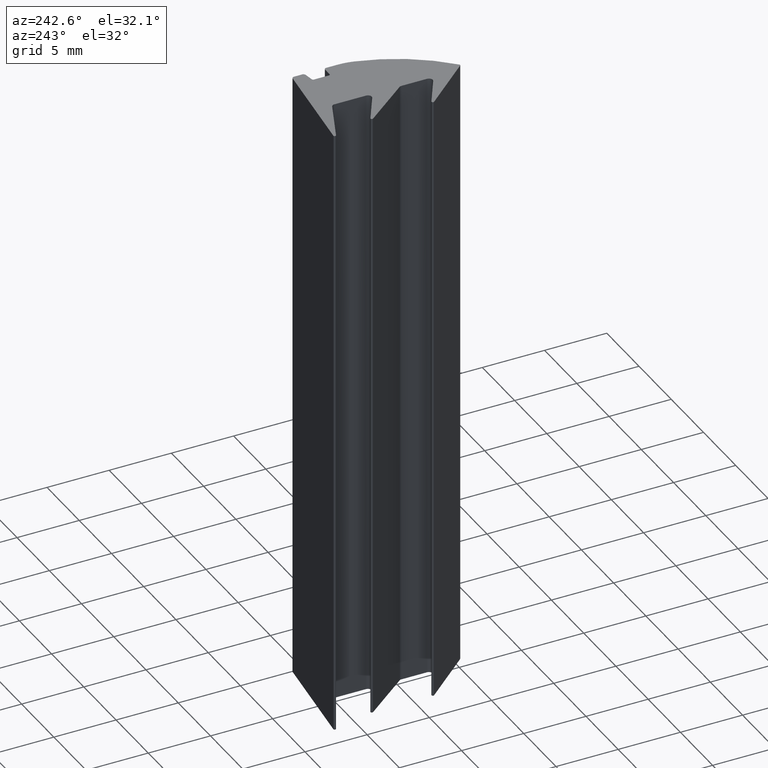
[diagram: clean part render]
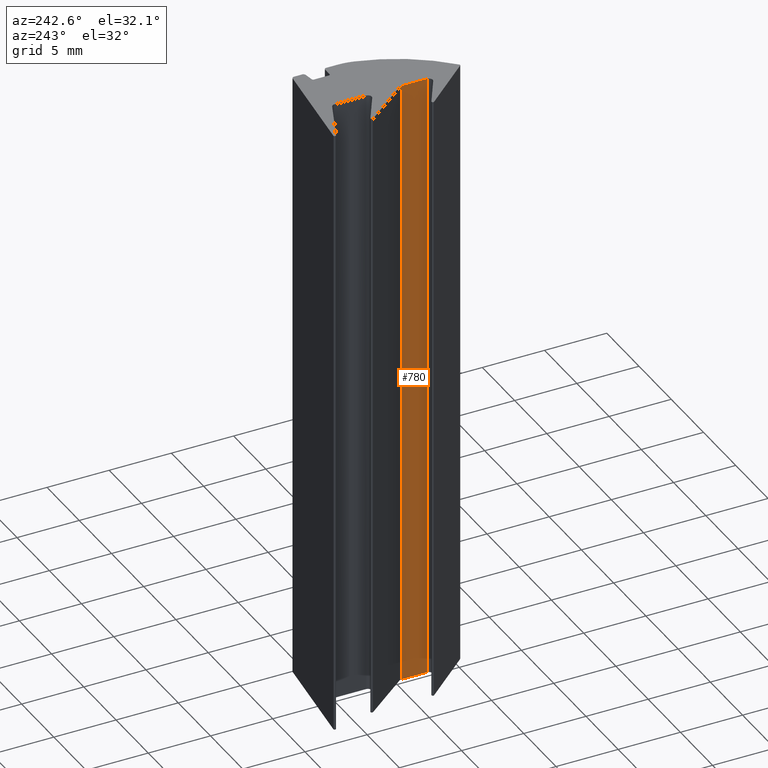
[diagram: same view with one face highlighted and labeled with its STEP entity id]
A machine part, auxiliary view. The second image highlights one B-rep face of the part: STEP entity #780.
In plain terms, the highlighted planar face has unit normal (-1, 0, 0).
Its self-contained STEP definition (entity closure, byte-faithful):
#722=CARTESIAN_POINT('',(-0.640388909993418,4.981490712340172,0.0));
#723=VERTEX_POINT('',#722);
#731=CARTESIAN_POINT('',(-0.640388909993418,4.981490712340172,50.0));
#732=VERTEX_POINT('',#731);
#733=CARTESIAN_POINT('',(-0.640388909993418,4.981490712340172,0.0));
#734=DIRECTION('',(0.0,0.0,1.0));
#735=VECTOR('',#734,50.0);
#736=LINE('',#733,#735);
#737=EDGE_CURVE('',#723,#732,#736,.T.);
#750=CARTESIAN_POINT('',(-0.640388909993418,4.981490712340172,0.0));
#751=DIRECTION('',(-1.0,0.0,0.0));
#752=DIRECTION('',(0.0,-1.0,0.0));
#753=AXIS2_PLACEMENT_3D('',#750,#751,#752);
#754=PLANE('',#753);
#755=CARTESIAN_POINT('',(-0.640388909993418,2.927990804118320,0.0));
#756=VERTEX_POINT('',#755);
#757=CARTESIAN_POINT('',(-0.640388909993418,4.981490712340172,0.0));
#758=DIRECTION('',(0.0,-1.0,0.0));
#759=VECTOR('',#758,2.053499908221852);
#760=LINE('',#757,#759);
#761=EDGE_CURVE('',#723,#756,#760,.T.);
#762=ORIENTED_EDGE('',*,*,#761,.T.);
#763=CARTESIAN_POINT('',(-0.640388909993418,2.927990804118320,50.0));
#764=VERTEX_POINT('',#763);
#765=CARTESIAN_POINT('',(-0.640388909993418,2.927990804118320,0.0));
#766=DIRECTION('',(0.0,0.0,1.0));
#767=VECTOR('',#766,50.0);
#768=LINE('',#765,#767);
#769=EDGE_CURVE('',#756,#764,#768,.T.);
#770=ORIENTED_EDGE('',*,*,#769,.T.);
#771=CARTESIAN_POINT('',(-0.640388909993418,4.981490712340172,50.0));
#772=DIRECTION('',(0.0,-1.0,0.0));
#773=VECTOR('',#772,2.053499908221852);
#774=LINE('',#771,#773);
#775=EDGE_CURVE('',#732,#764,#774,.T.);
#776=ORIENTED_EDGE('',*,*,#775,.F.);
#777=ORIENTED_EDGE('',*,*,#737,.F.);
#778=EDGE_LOOP('',(#762,#770,#776,#777));
#779=FACE_OUTER_BOUND('',#778,.T.);
#780=ADVANCED_FACE('',(#779),#754,.T.);